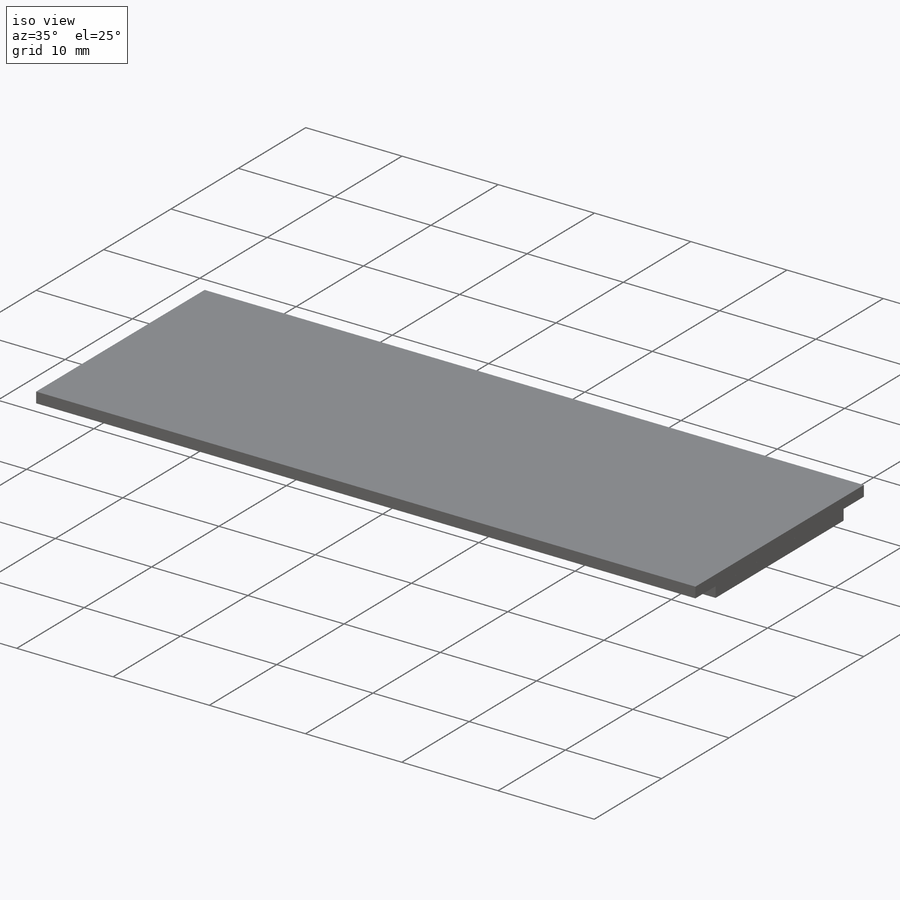
[diagram: iso view]
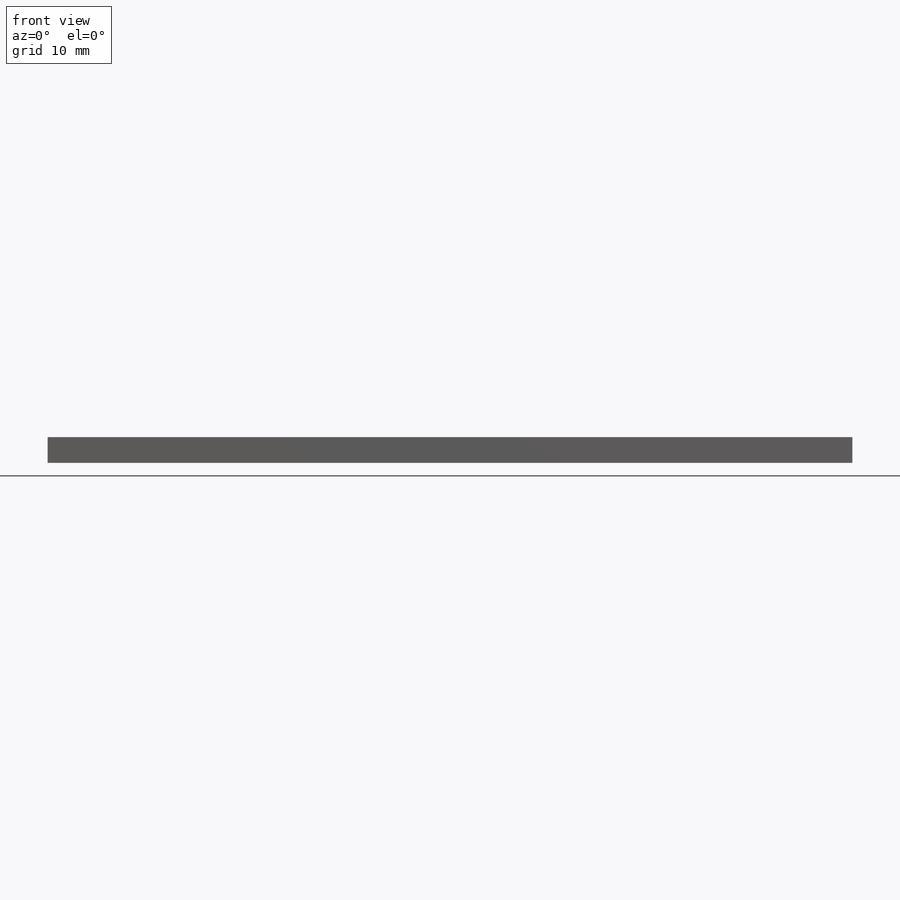
[diagram: front view]
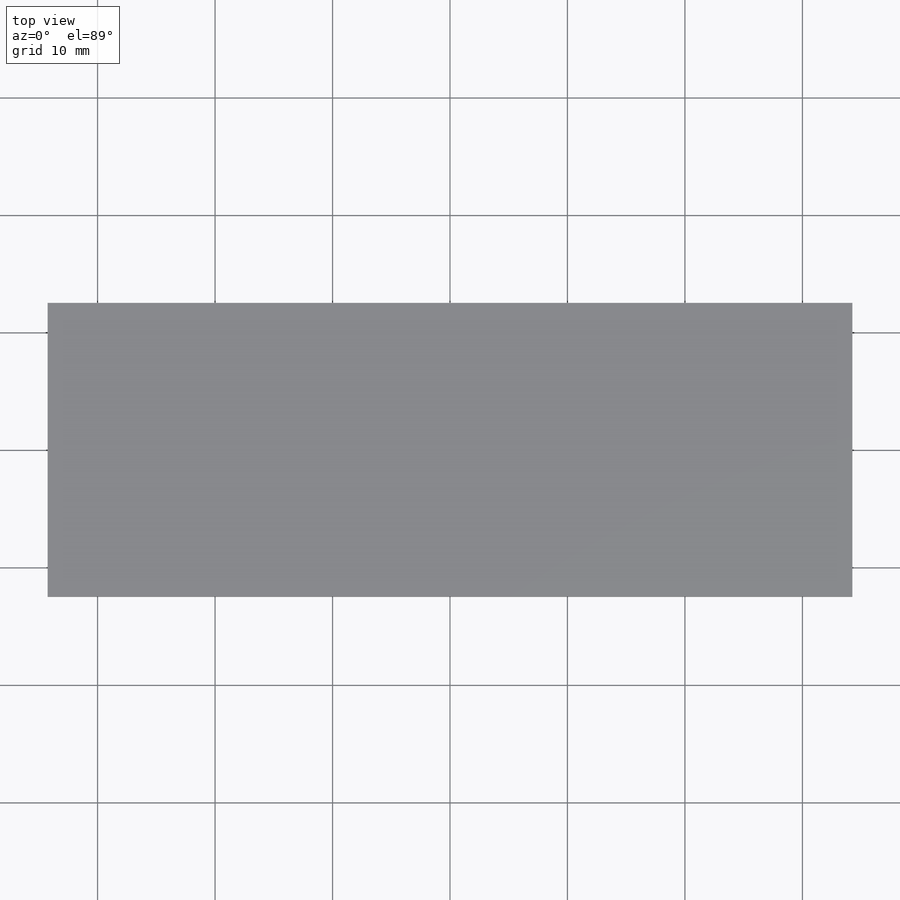
[diagram: top view]
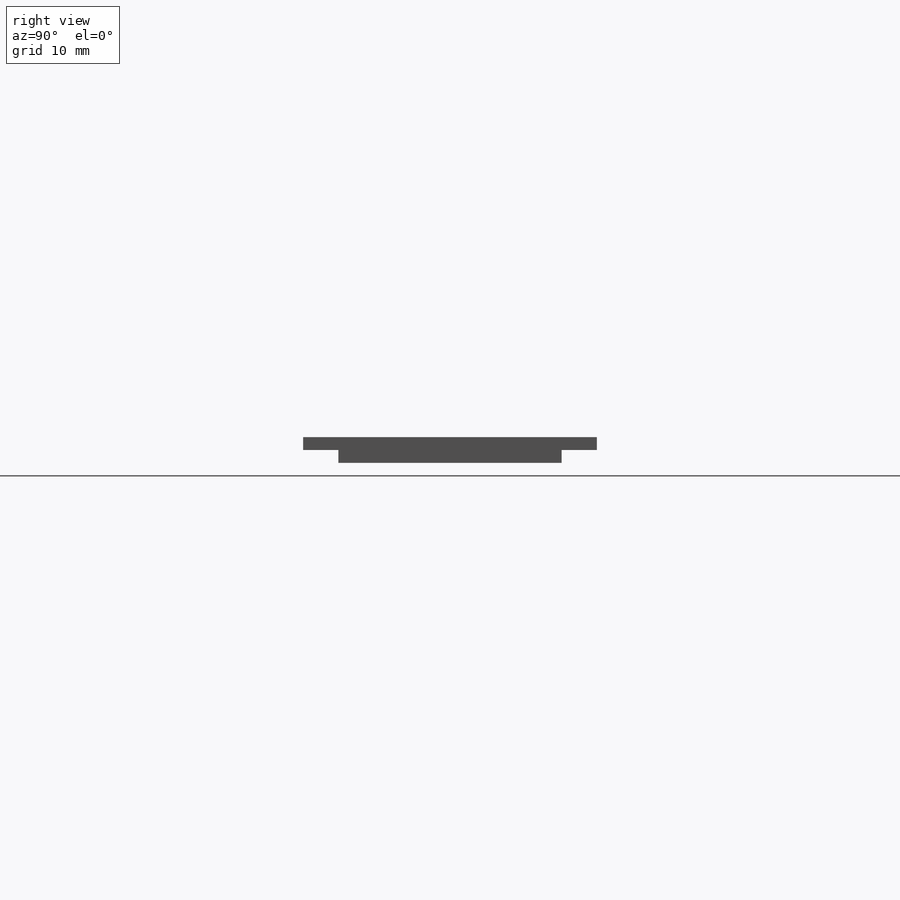
[diagram: right view]
SOLIDWORKS PART (.sldprt)
format: sldprt  version: not decoded by parser v0  size: 4,712,448 bytes
history: native  units: mm
features: sketch x8, cut_extrude x4, extrude x3, material x1 (+11 scaffold rows collapsed)
feature tree (27):
  scaffold x11  (default folders/planes/origin — collapsed)
  material  "Glass"
  sketch  "Sketch1"  dims[D1=68.5mm D2=25.0mm D3=12.5mm D4=34.25mm]
  extrude  "Boss-Extrude1"  Depth=1.1mm
  sketch  "Sketch2"  dims[D1=19.0mm D2=9.5mm]
  extrude  "Boss-Extrude2"  Depth=0.1mm
  sketch  "Sketch3"  dims[c1.D1=28.85mm c1.D2=4.75mm c1.D3=4.35mm c1.D4=2.95mm c1.D5=0.1mm c1.D6=0.51mm c1.D7=0.5mm c1.D8=0.51mm c2.D7=0.05mm c2.D2=4.75mm c2.D10=90.0deg c2.D11=3.65mm c2.D12=5.15mm c2.D1=2.95mm c3.D2=4.75mm c3.D3=4.35mm c3.D4=25.9mm c3.D10=90.0deg c3.D11=3.65mm c3.D12=5.15mm c4.D2=0.1mm c4.D5=4.75mm c4.D9=90.0deg c4.D10=3.65mm c4.D11=5.15mm c4.D8=16.0 c5.D9=2.0]
  sketch  "Sketch5"
  cut_extrude  "Grabcad"  Depth=1mm
  sketch  "Sketch6"
  cut_extrude  "16x2 LCD"  Depth=1mm
  sketch  "Sketch7"
  cut_extrude  "for i2s"  Depth=1mm
  sketch  "Sketch8"
  cut_extrude  "Cut-Extrude2"  Depth=1mm
  sketch  "Sketch4"
  extrude  "Boss-Extrude3"  Depth=1mm
decode coverage: 10 of 15 modeling features carry decoded parameters
note: suppression state not decoded; provenance and decode notes live in map.json
